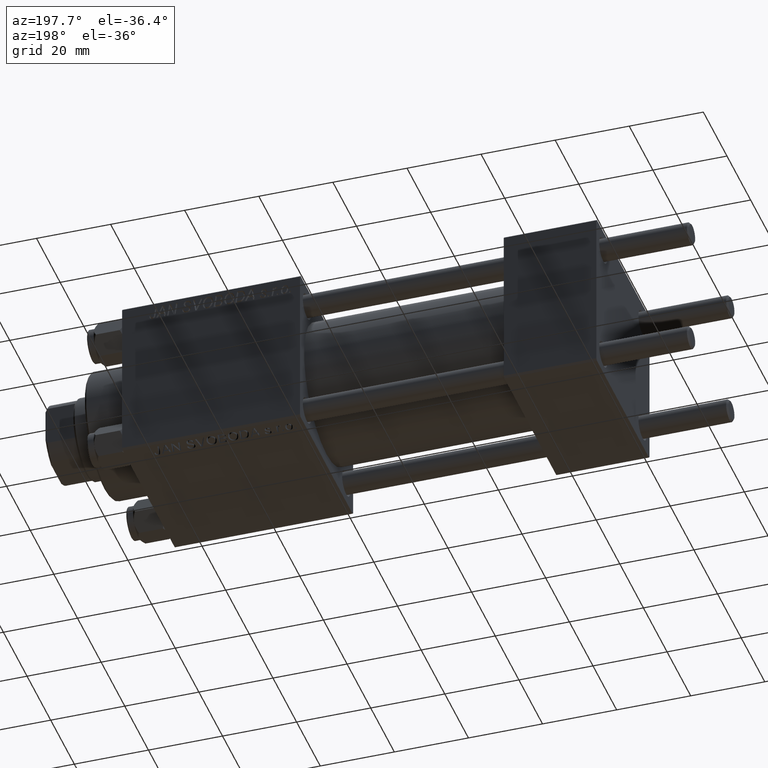
[diagram: clean part render]
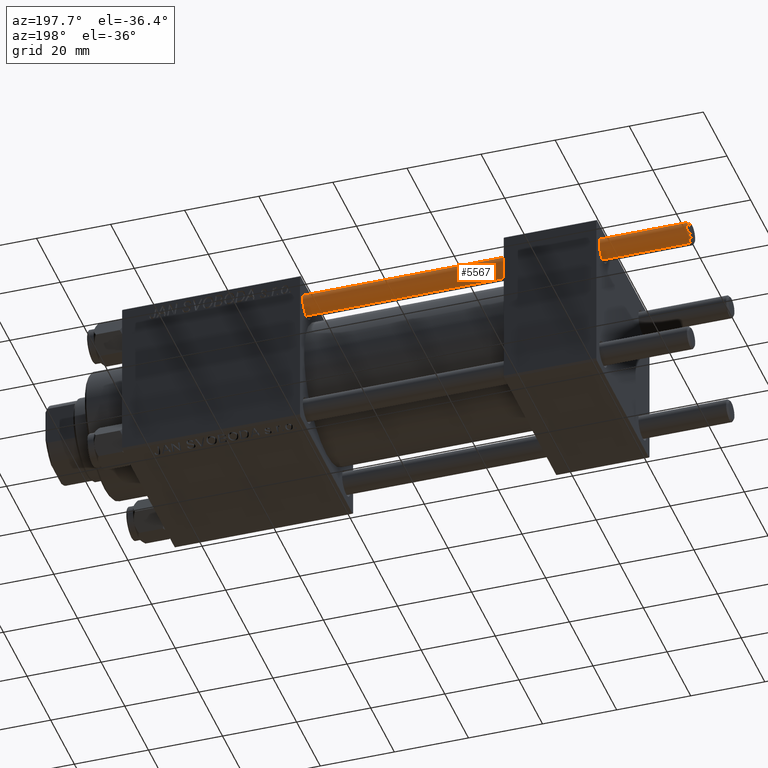
[diagram: same view with one face highlighted and labeled with its STEP entity id]
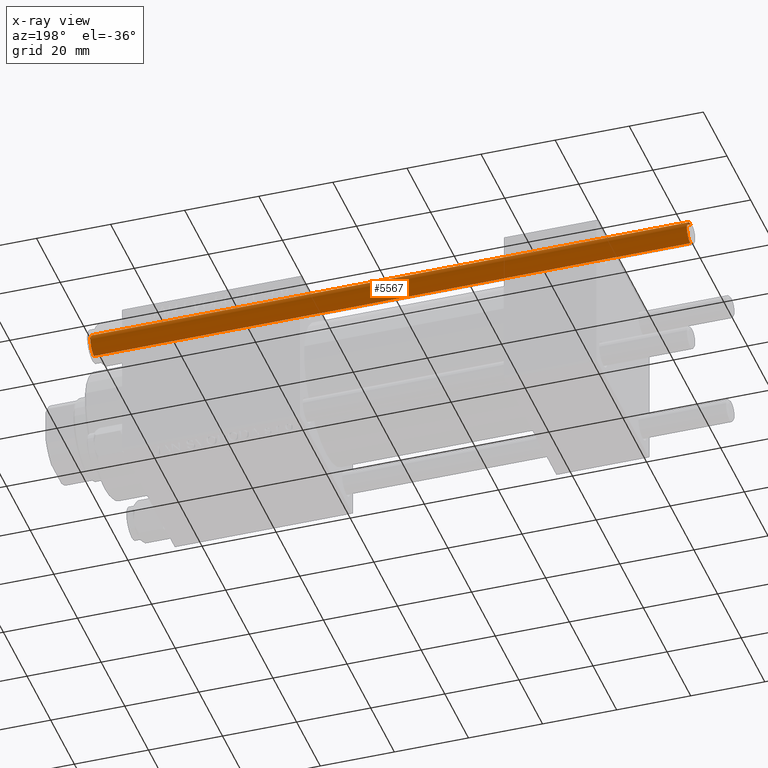
[diagram: x-ray of the same camera — body ghosted, the highlighted face saturated]
A machine part, auxiliary view. The second image highlights one B-rep face of the part: STEP entity #5567.
The next image is the same camera in x-ray: the body ghosted, the highlighted face saturated — about 0% of this face is hidden behind the body in this view.
In plain terms, the highlighted cylindrical surface (edge-blend (fillet) strip) has radius 3 mm, axis along (-1, -0, -0).
Its self-contained STEP definition (entity closure, byte-faithful):
#934 = CARTESIAN_POINT ( 'NONE',  ( 3.000000000000000444, 3.673940397442060361E-16, 161.5000000000000568 ) ) ;
#3336 = CARTESIAN_POINT ( 'NONE',  ( 0.000000000000000000, 0.000000000000000000, 161.5000000000000568 ) ) ;
#5046 = DIRECTION ( 'NONE',  ( -0.000000000000000000, -0.000000000000000000, -1.000000000000000000 ) ) ;
#5567 = ADVANCED_FACE ( 'NONE', ( #9772 ), #13064, .T. ) ;
#6225 = CARTESIAN_POINT ( 'NONE',  ( 0.000000000000000000, 0.000000000000000000, 0.5000000000000004441 ) ) ;
#6868 = CARTESIAN_POINT ( 'NONE',  ( 3.000000000000000444, 3.673940397442060361E-16, 162.0000000000000000 ) ) ;
#7575 = EDGE_CURVE ( 'NONE', #29715, #9419, #34525, .T. ) ;
#8680 = CARTESIAN_POINT ( 'NONE',  ( 3.000000000000000444, 3.673940397442060361E-16, 0.5000000000000004441 ) ) ;
#9419 = VERTEX_POINT ( 'NONE', #13892 ) ;
#9772 = FACE_OUTER_BOUND ( 'NONE', #41225, .T. ) ;
#12915 = VERTEX_POINT ( 'NONE', #18607 ) ;
#13064 = CYLINDRICAL_SURFACE ( 'NONE', #26424, 3.000000000000000444 ) ;
#13892 = CARTESIAN_POINT ( 'NONE',  ( -3.000000000000000444, 0.000000000000000000, 0.5000000000000004441 ) ) ;
#14644 = VECTOR ( 'NONE', #22295, 1000.000000000000000 ) ;
#15201 = DIRECTION ( 'NONE',  ( 0.000000000000000000, 0.000000000000000000, -1.000000000000000000 ) ) ;
#17012 = ORIENTED_EDGE ( 'NONE', *, *, #38405, .T. ) ;
#18203 = ORIENTED_EDGE ( 'NONE', *, *, #48938, .F. ) ;
#18361 = DIRECTION ( 'NONE',  ( -0.000000000000000000, -0.000000000000000000, 1.000000000000000000 ) ) ;
#18377 = AXIS2_PLACEMENT_3D ( 'NONE', #6225, #18361, #40872 ) ;
#18607 = CARTESIAN_POINT ( 'NONE',  ( -3.000000000000000444, 0.000000000000000000, 161.5000000000000568 ) ) ;
#18662 = CIRCLE ( 'NONE', #39663, 3.000000000000000444 ) ;
#19251 = DIRECTION ( 'NONE',  ( 1.000000000000000000, 0.000000000000000000, 0.000000000000000000 ) ) ;
#20497 = ORIENTED_EDGE ( 'NONE', *, *, #38509, .T. ) ;
#22295 = DIRECTION ( 'NONE',  ( -0.000000000000000000, -0.000000000000000000, -1.000000000000000000 ) ) ;
#26097 = LINE ( 'NONE', #6868, #14644 ) ;
#26424 = AXIS2_PLACEMENT_3D ( 'NONE', #32278, #27995, #35820 ) ;
#27995 = DIRECTION ( 'NONE',  ( -0.000000000000000000, -0.000000000000000000, -1.000000000000000000 ) ) ;
#29715 = VERTEX_POINT ( 'NONE', #8680 ) ;
#31581 = VERTEX_POINT ( 'NONE', #934 ) ;
#31607 = LINE ( 'NONE', #43258, #40811 ) ;
#32278 = CARTESIAN_POINT ( 'NONE',  ( 0.000000000000000000, 0.000000000000000000, 162.0000000000000000 ) ) ;
#34525 = CIRCLE ( 'NONE', #18377, 3.000000000000000444 ) ;
#35820 = DIRECTION ( 'NONE',  ( -1.000000000000000000, 0.000000000000000000, 0.000000000000000000 ) ) ;
#38405 = EDGE_CURVE ( 'NONE', #12915, #31581, #18662, .T. ) ;
#38509 = EDGE_CURVE ( 'NONE', #31581, #29715, #26097, .T. ) ;
#39663 = AXIS2_PLACEMENT_3D ( 'NONE', #3336, #15201, #19251 ) ;
#40811 = VECTOR ( 'NONE', #5046, 1000.000000000000000 ) ;
#40872 = DIRECTION ( 'NONE',  ( 1.000000000000000000, 0.000000000000000000, 0.000000000000000000 ) ) ;
#41225 = EDGE_LOOP ( 'NONE', ( #17012, #20497, #47374, #18203 ) ) ;
#43258 = CARTESIAN_POINT ( 'NONE',  ( -3.000000000000000444, 0.000000000000000000, 162.0000000000000000 ) ) ;
#47374 = ORIENTED_EDGE ( 'NONE', *, *, #7575, .T. ) ;
#48938 = EDGE_CURVE ( 'NONE', #12915, #9419, #31607, .T. ) ;